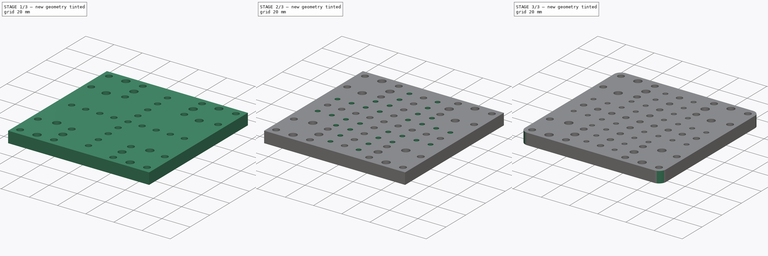
[diagram: build sequence overview — one tinted view per stage of 3, left to right]
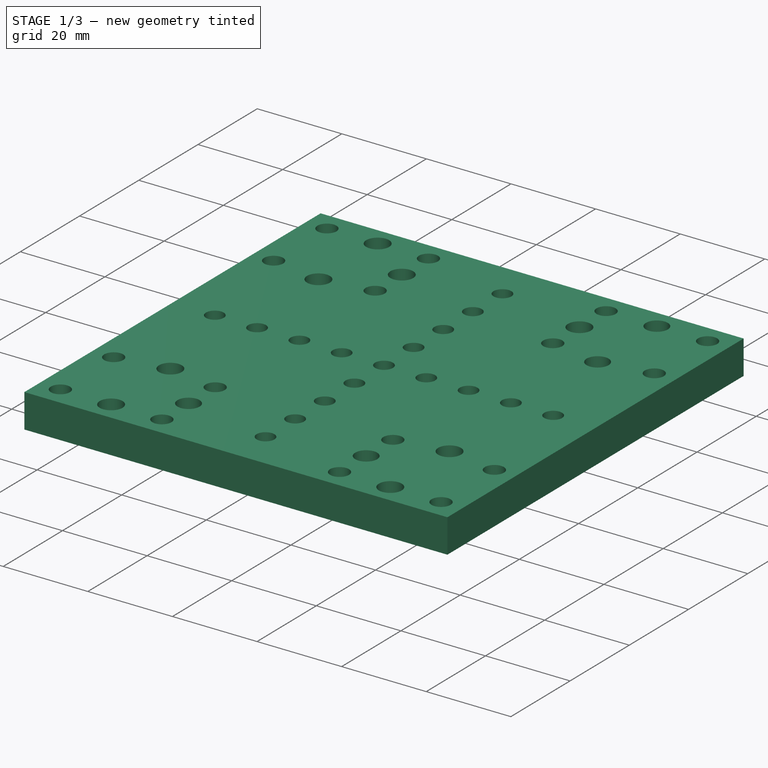
[diagram: stage 1 of 3 — iso view after this stage's code; geometry added in this stage tinted green]
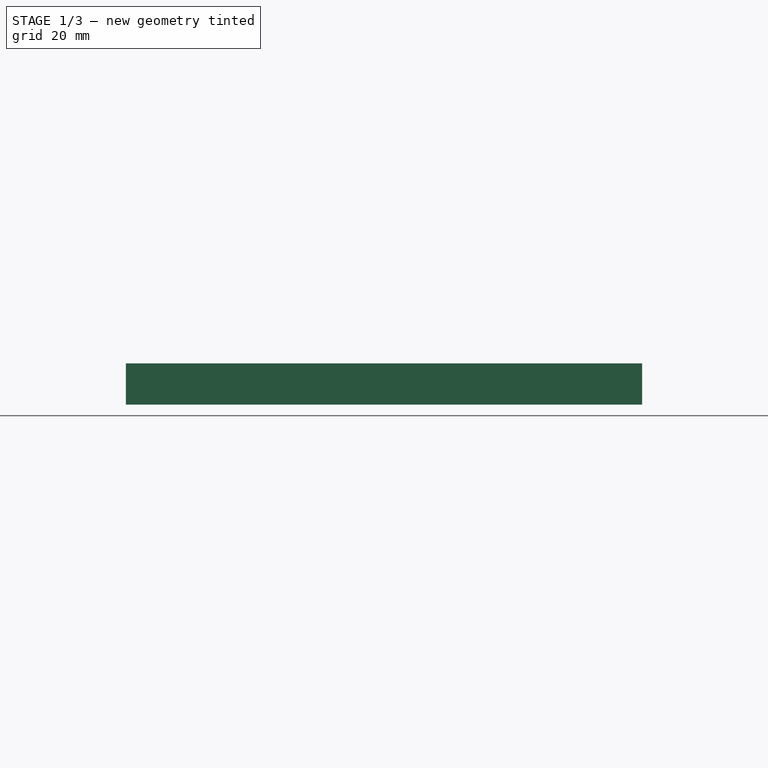
[diagram: stage 1 of 3 — front view after this stage's code; geometry added in this stage tinted green]
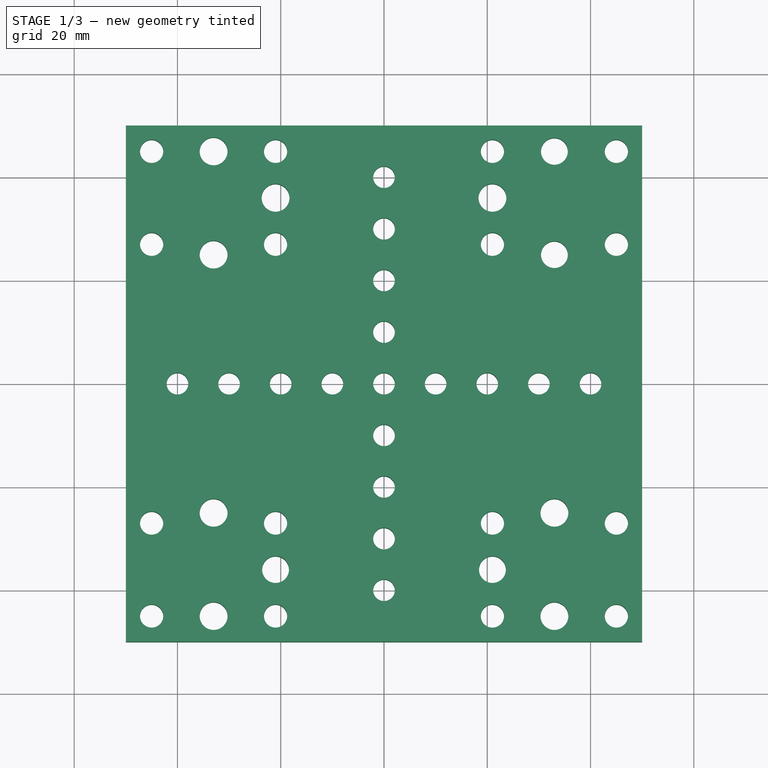
[diagram: stage 1 of 3 — top view after this stage's code; geometry added in this stage tinted green]
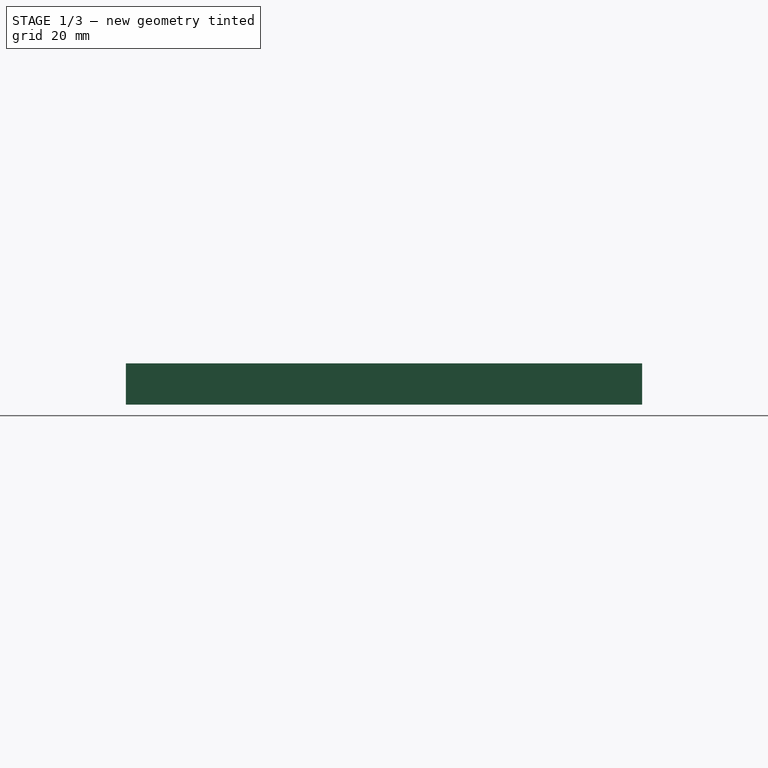
[diagram: stage 1 of 3 — right view after this stage's code; geometry added in this stage tinted green]
FCSTD DOCUMENT  (FreeCAD 0.16R6707 (Git))
Label: spindle base plate
License: All rights reserved
LicenseURL: http://en.wikipedia.org/wiki/All_rights_reserved
objects: Sketcher::SketchObject×4, PartDesign::Pocket×3, PartDesign::Pad×1, PartDesign::Fillet×1
note: 13 computed .brp shape members not serialized (recipe doc carries the construction recipe); baked Part::Feature solids carry a one-line shape summary decoded from their .brp

FEATURE [Sketcher::SketchObject] Sketch
  sketch-geometry (4):
    g0: LineSegment StartX=-50 StartY=50 StartZ=0 EndX=50 EndY=50 EndZ=0
    g1: LineSegment StartX=50 StartY=50 StartZ=0 EndX=50 EndY=-50 EndZ=0
    g2: LineSegment StartX=50 StartY=-50 StartZ=0 EndX=-50 EndY=-50 EndZ=0
    g3: LineSegment StartX=-50 StartY=-50 StartZ=0 EndX=-50 EndY=50 EndZ=0
  constraints (12):
    c: Coincident(g0,g1)
    c: Coincident(g1,g2)
    c: Coincident(g2,g3)
    c: Coincident(g3,g0)
    c: Horizontal(g0)
    c: Horizontal(g2)
    c: Vertical(g1)
    c: Vertical(g3)
    c: Symmetric(g0,g0,g-2)
    c: Symmetric(g0,g2,g-1)
    c: DistanceY(g3,g3) = 100
    c: DistanceX(g0,g0) = 100
FEATURE [PartDesign::Pad] Pad
  Length = 8
  Length2 = 100
  Sketch = -> Sketch
  Type = 0
FEATURE [Sketcher::SketchObject] Sketch001
  Placement = pos=(0,0,8) rot=(0,0,1;0rad)
  Support = -> Pad [Face6]
  sketch-geometry (69):
    g0: LineSegment [constr] StartX=-45 StartY=45 StartZ=0 EndX=45 EndY=45 EndZ=0
    g1: LineSegment [constr] StartX=45 StartY=45 StartZ=0 EndX=45 EndY=-45 EndZ=0
    g2: LineSegment [constr] StartX=45 StartY=-45 StartZ=0 EndX=-45 EndY=-45 EndZ=0
    g3: LineSegment [constr] StartX=-45 StartY=-45 StartZ=0 EndX=-45 EndY=45 EndZ=0
    g4: LineSegment [constr] StartX=-21 StartY=27 StartZ=0 EndX=21 EndY=27 EndZ=0
    g5: LineSegment [constr] StartX=21 StartY=27 StartZ=0 EndX=21 EndY=-27 EndZ=0
    g6: LineSegment [constr] StartX=21 StartY=-27 StartZ=0 EndX=-21 EndY=-27 EndZ=0
    g7: LineSegment [constr] StartX=-21 StartY=-27 StartZ=0 EndX=-21 EndY=27 EndZ=0
    g8: Circle CenterX=-21 CenterY=45 CenterZ=0 NormalX=0 NormalY=0 NormalZ=1 Radius=2.25
    g9: Circle CenterX=-45 CenterY=27 CenterZ=0 NormalX=0 NormalY=0 NormalZ=1 Radius=2.25
    g10: Circle CenterX=-45 CenterY=45 CenterZ=0 NormalX=0 NormalY=0 NormalZ=1 Radius=2.25
    g11: Circle CenterX=-21 CenterY=27 CenterZ=0 NormalX=0 NormalY=0 NormalZ=1 Radius=2.25
    g12: Circle CenterX=21 CenterY=27 CenterZ=0 NormalX=0 NormalY=0 NormalZ=1 Radius=2.25
    g13: Circle CenterX=21 CenterY=45 CenterZ=0 NormalX=0 NormalY=0 NormalZ=1 Radius=2.25
    g14: Circle CenterX=45 CenterY=27 CenterZ=0 NormalX=0 NormalY=0 NormalZ=1 Radius=2.25
    g15: Circle CenterX=45 CenterY=45 CenterZ=0 NormalX=0 NormalY=0 NormalZ=1 Radius=2.25
    g16: Circle CenterX=21 CenterY=-27 CenterZ=0 NormalX=0 NormalY=0 NormalZ=1 Radius=2.25
    g17: Circle CenterX=45 CenterY=-27 CenterZ=0 NormalX=0 NormalY=0 NormalZ=1 Radius=2.25
    g18: Circle CenterX=45 CenterY=-45 CenterZ=0 NormalX=0 NormalY=0 NormalZ=1 Radius=2.25
    g19: Circle CenterX=21 CenterY=-45 CenterZ=0 NormalX=0 NormalY=0 NormalZ=1 Radius=2.25
    g20: Circle CenterX=-21 CenterY=-27 CenterZ=0 NormalX=0 NormalY=0 NormalZ=1 Radius=2.25
    g21: Circle CenterX=-45 CenterY=-27 CenterZ=0 NormalX=0 NormalY=0 NormalZ=1 Radius=2.25
    g22: Circle CenterX=-21 CenterY=-45 CenterZ=0 NormalX=0 NormalY=0 NormalZ=1 Radius=2.25
    g23: Circle CenterX=-45 CenterY=-45 CenterZ=0 NormalX=0 NormalY=0 NormalZ=1 Radius=2.25
    g24: LineSegment [constr] StartX=-50 StartY=51 StartZ=0 EndX=-16 EndY=51 EndZ=0
    g25: LineSegment [constr] StartX=-16 StartY=51 StartZ=0 EndX=-16 EndY=21 EndZ=0
    g26: LineSegment [constr] StartX=-16 StartY=21 StartZ=0 EndX=-50 EndY=21 EndZ=0
    g27: LineSegment [constr] StartX=-50 StartY=21 StartZ=0 EndX=-50 EndY=51 EndZ=0
    g28: LineSegment [constr] StartX=-33 StartY=67.8937 StartZ=0 EndX=-33 EndY=-55.8987 EndZ=0
    g29: LineSegment [constr] StartX=33 StartY=60.0001 StartZ=0 EndX=33 EndY=-50 EndZ=0
    g30: Circle CenterX=-33 CenterY=45 CenterZ=0 NormalX=0 NormalY=0 NormalZ=1 Radius=2.7
    g31: Circle CenterX=-33 CenterY=25 CenterZ=0 NormalX=0 NormalY=0 NormalZ=1 Radius=2.7
    g32: Circle CenterX=33 CenterY=45 CenterZ=0 NormalX=0 NormalY=0 NormalZ=1 Radius=2.6
    g33: Circle CenterX=33 CenterY=25 CenterZ=0 NormalX=0 NormalY=0 NormalZ=1 Radius=2.6
    g34: LineSegment [constr] StartX=-43 StartY=55 StartZ=0 EndX=-23 EndY=55 EndZ=0
    g35: LineSegment [constr] StartX=-23 StartY=55 StartZ=0 EndX=-23 EndY=15 EndZ=0
    g36: LineSegment [constr] StartX=-23 StartY=15 StartZ=0 EndX=-43 EndY=15 EndZ=0
    g37: LineSegment [constr] StartX=-43 StartY=15 StartZ=0 EndX=-43 EndY=55 EndZ=0
    g38: Circle CenterX=-21 CenterY=-36 CenterZ=0 NormalX=0 NormalY=0 NormalZ=1 Radius=2.6
    g39: Circle CenterX=21 CenterY=-36 CenterZ=0 NormalX=0 NormalY=0 NormalZ=1 Radius=2.6
    g40: LineSegment [constr] StartX=-60 StartY=36 StartZ=0 EndX=59.9989 EndY=36 EndZ=0
    g41: Circle CenterX=-21 CenterY=36 CenterZ=0 NormalX=0 NormalY=0 NormalZ=1 Radius=2.7
    g42: Circle CenterX=21 CenterY=36 CenterZ=0 NormalX=0 NormalY=0 NormalZ=1 Radius=2.7
    g43: Circle CenterX=33 CenterY=-45 CenterZ=0 NormalX=0 NormalY=0 NormalZ=1 Radius=2.7
    g44: Circle CenterX=33 CenterY=-25 CenterZ=0 NormalX=0 NormalY=0 NormalZ=1 Radius=2.7
    g45: Circle CenterX=-33 CenterY=-25 CenterZ=0 NormalX=0 NormalY=0 NormalZ=1 Radius=2.7
    g46: Circle CenterX=-33 CenterY=-45 CenterZ=0 NormalX=0 NormalY=0 NormalZ=1 Radius=2.7
    g47: LineSegment [constr] StartX=-56.1432 StartY=-36 StartZ=0 EndX=70 EndY=-36 EndZ=0
    g48: LineSegment [constr] StartX=-21 StartY=-29 StartZ=0 EndX=21 EndY=-29 EndZ=0
    g49: LineSegment [constr] StartX=21 StartY=-29 StartZ=0 EndX=21 EndY=-43 EndZ=0
    g50: LineSegment [constr] StartX=21 StartY=-43 StartZ=0 EndX=-21 EndY=-43 EndZ=0
    g51: LineSegment [constr] StartX=-21 StartY=-43 StartZ=0 EndX=-21 EndY=-29 EndZ=0
    g52: Circle CenterX=0 CenterY=10 CenterZ=0 NormalX=0 NormalY=0 NormalZ=1 Radius=2.1
    g53: Circle CenterX=0 CenterY=20 CenterZ=0 NormalX=0 NormalY=0 NormalZ=1 Radius=2.1
    g54: Circle CenterX=0 CenterY=30 CenterZ=0 NormalX=0 NormalY=0 NormalZ=1 Radius=2.1
    g55: Circle CenterX=0 CenterY=40 CenterZ=0 NormalX=0 NormalY=0 NormalZ=1 Radius=2.1
    g56: Circle CenterX=10 CenterY=0 CenterZ=0 NormalX=0 NormalY=0 NormalZ=1 Radius=2.1
    g57: Circle CenterX=20 CenterY=0 CenterZ=0 NormalX=0 NormalY=0 NormalZ=1 Radius=2.1
    g58: Circle CenterX=30 CenterY=0 CenterZ=0 NormalX=0 NormalY=0 NormalZ=1 Radius=2.1
    g59: Circle CenterX=40 CenterY=0 CenterZ=0 NormalX=0 NormalY=0 NormalZ=1 Radius=2.1
    g60: Circle CenterX=-10 CenterY=0 CenterZ=0 NormalX=0 NormalY=0 NormalZ=1 Radius=2.1
    g61: Circle CenterX=-20 CenterY=0 CenterZ=0 NormalX=0 NormalY=0 NormalZ=1 Radius=2.1
    g62: Circle CenterX=-30 CenterY=0 CenterZ=0 NormalX=0 NormalY=0 NormalZ=1 Radius=2.1
    g63: Circle CenterX=-40 CenterY=0 CenterZ=0 NormalX=0 NormalY=0 NormalZ=1 Radius=2.1
    g64: Circle CenterX=0 CenterY=-10 CenterZ=0 NormalX=0 NormalY=0 NormalZ=1 Radius=2.1
    g65: Circle CenterX=0 CenterY=-20 CenterZ=0 NormalX=0 NormalY=0 NormalZ=1 Radius=2.1
    g66: Circle CenterX=0 CenterY=-30 CenterZ=0 NormalX=0 NormalY=0 NormalZ=1 Radius=2.1
    g67: Circle CenterX=0 CenterY=-40 CenterZ=0 NormalX=0 NormalY=0 NormalZ=1 Radius=2.1
    g68: Circle CenterX=0 CenterY=0 CenterZ=0 NormalX=0 NormalY=0 NormalZ=1 Radius=2.1
  constraints (189):
    c: Coincident(g0,g1)
    c: Coincident(g1,g2)
    c: Coincident(g2,g3)
    c: Coincident(g3,g0)
    c: Horizontal(g2)
    c: Vertical(g1)
    c: Vertical(g3)
    c: Symmetric(g0,g0,g-2)
    c: Symmetric(g0,g2,g-1)
    c: DistanceX(g0,g0) = 90
    c: DistanceY(g3,g3) = 90
    c: Coincident(g4,g5)
    c: Coincident(g5,g6)
    c: Coincident(g6,g7)
    c: Coincident(g7,g4)
    c: Horizontal(g4)
    c: Horizontal(g6)
    c: Vertical(g5)
    c: Vertical(g7)
    c: Symmetric(g4,g4,g-2)
    c: Symmetric(g4,g6,g-1)
    c: DistanceY(g5,g5) = 54
    c: DistanceX(g4,g4) = 42
    c: PointOnObject(g8,g0)
    c: PointOnObject(g9,g3)
    c: Coincident(g10,g0)
    c: Coincident(g11,g4)
    c: Coincident(g12,g4)
    c: PointOnObject(g13,g0)
    c: PointOnObject(g14,g1)
    c: Coincident(g15,g0)
    c: Coincident(g16,g5)
    c: PointOnObject(g17,g1)
    c: Coincident(g18,g1)
    c: PointOnObject(g19,g2)
    c: Coincident(g20,g6)
    c: PointOnObject(g21,g3)
    c: PointOnObject(g22,g2)
    c: Coincident(g23,g2)
    c: Equal(g10,g8)
    c: Equal(g8,g11)
    c: Equal(g11,g9)
    c: Equal(g9,g21)
    c: Equal(g21,g23)
    c: Equal(g23,g20)
    c: Equal(g20,g22)
    c: Equal(g22,g19)
    c: Equal(g19,g16)
    c: Equal(g16,g17)
    c: Equal(g17,g18)
    c: Equal(g18,g14)
    c: Equal(g14,g12)
    c: Equal(g12,g13)
    c: Equal(g13,g15)
    c: Radius(g10) = 2.25
    c: PointOnObject(g9,g4)
    c: PointOnObject(g8,g7)
    c: PointOnObject(g13,g5)
    c: PointOnObject(g14,g4)
    c: PointOnObject(g21,g6)
    c: PointOnObject(g22,g7)
    c: PointOnObject(g19,g5)
    c: PointOnObject(g17,g6)
    c: Coincident(g24,g25)
    c: Coincident(g25,g26)
    c: Coincident(g26,g27)
    c: Coincident(g27,g24)
    c: Horizontal(g24)
    c: Horizontal(g26)
    c: Vertical(g25)
    c: Vertical(g27)
    c: DistanceX(g24,g0) = 5
    c: DistanceY(g0,g24) = 6
    c: DistanceY(g27,g27) = 30
    c: DistanceX(g24,g24) = 34
    c: Vertical(g28)
    c: Symmetric(g0,g8,g28)
    c: Vertical(g29)
    c: Symmetric(g13,g0,g29)
    c: PointOnObject(g30,g0)
    c: PointOnObject(g30,g28)
    c: PointOnObject(g31,g28)
    c: DistanceY(g31,g30) = 20
    c: PointOnObject(g32,g0)
    c: PointOnObject(g32,g29)
    c: PointOnObject(g33,g29)
    c: DistanceY(g33,g32) = 20
    c: Equal(g30,g31)
    c: Equal(g32,g33)
    c: Radius(g30) = 2.7
    c: Coincident(g34,g35)
    c: Coincident(g35,g36)
    c: Coincident(g36,g37)
    c: Coincident(g37,g34)
    c: Horizontal(g34)
    c: Horizontal(g36)
    c: Vertical(g35)
    c: Vertical(g37)
    c: Symmetric(g34,g34,g28)
    c: DistanceY(g30,g34) = 10
    c: DistanceX(g34,g34) = 20
    c: DistanceY(g37,g37) = 40
    c: Horizontal(g40)
    c: Symmetric(g0,g14,g40)
    c: PointOnObject(g41,g40)
    c: PointOnObject(g42,g40)
    c: Symmetric(g41,g42,g-2)
    c: Equal(g41,g42)
    c: Radius(g41) = 2.7
    c: DistanceX(g41,g42) = 42
    c: PointOnObject(g43,g2)
    c: PointOnObject(g44,g29)
    c: PointOnObject(g45,g28)
    c: PointOnObject(g46,g2)
    c: PointOnObject(g46,g28)
    c: PointOnObject(g43,g29)
    c: Equal(g45,g46)
    c: Equal(g46,g44)
    c: Equal(g44,g43)
    c: Radius(g45) = 2.7
    c: DistanceY(g46,g45) = 20
    c: DistanceY(g43,g44) = 20
    c: Radius(g38) = 2.6
    c: Equal(g38,g39)
    c: Symmetric(g39,g38,g-2)
    c: DistanceX(g38,g39) = 42
    c: Horizontal(g47)
    c: Symmetric(g17,g1,g47)
    c: PointOnObject(g39,g47)
    c: Coincident(g48,g49)
    c: Coincident(g49,g50)
    c: Coincident(g50,g51)
    c: Coincident(g51,g48)
    c: Horizontal(g48)
    c: Horizontal(g50)
    c: Vertical(g49)
    c: Vertical(g51)
    c: Symmetric(g48,g49,g47)
    c: DistanceY(g49,g49) = 14
    c: Symmetric(g48,g48,g-2)
    c: DistanceX(g48,g48) = 42
    c: PointOnObject(g52,g-2)
    c: PointOnObject(g53,g-2)
    c: PointOnObject(g54,g-2)
    c: PointOnObject(g56,g-1)
    c: PointOnObject(g57,g-1)
    c: PointOnObject(g58,g-1)
    c: PointOnObject(g59,g-1)
    c: PointOnObject(g60,g-1)
    c: PointOnObject(g61,g-1)
    c: PointOnObject(g62,g-1)
    c: PointOnObject(g63,g-1)
    c: PointOnObject(g64,g-2)
    c: PointOnObject(g65,g-2)
    c: PointOnObject(g67,g-2)
    c: Equal(g55,g54)
    c: Equal(g54,g53)
    c: Equal(g53,g52)
    c: Equal(g52,g64)
    c: Equal(g64,g65)
    c: Equal(g65,g66)
    c: Equal(g66,g67)
    c: Equal(g67,g60)
    c: Equal(g60,g61)
    c: Equal(g61,g62)
    c: Equal(g62,g63)
    c: Equal(g63,g56)
    c: Equal(g56,g57)
    c: Equal(g57,g58)
    c: Equal(g58,g59)
    c: Radius(g53) = 2.1
    c: Symmetric(g52,g64,g-1)
    c: Symmetric(g53,g65,g-1)
    c: Symmetric(g54,g66,g-1)
    c: Symmetric(g55,g67,g-1)
    c: DistanceY(g-1,g52) = 10
    c: DistanceY(g-1,g53) = 20
    c: DistanceY(g-1,g54) = 30
    c: DistanceY(g-1,g55) = 40
    c: Symmetric(g60,g56,g-2)
    c: Symmetric(g61,g57,g-2)
    c: Symmetric(g58,g62,g-2)
    c: Symmetric(g63,g59,g-2)
    c: DistanceX(g60,g-1) = 10
    c: DistanceX(g61,g-1) = 20
    c: DistanceX(g62,g-1) = 30
    c: DistanceX(g63,g-1) = 40
    c: Coincident(g68,g-1)
    c: Radius(g68) = 2.1
FEATURE [PartDesign::Pocket] Pocket
  Length = 5
  Sketch = -> Sketch001
  Type = 1
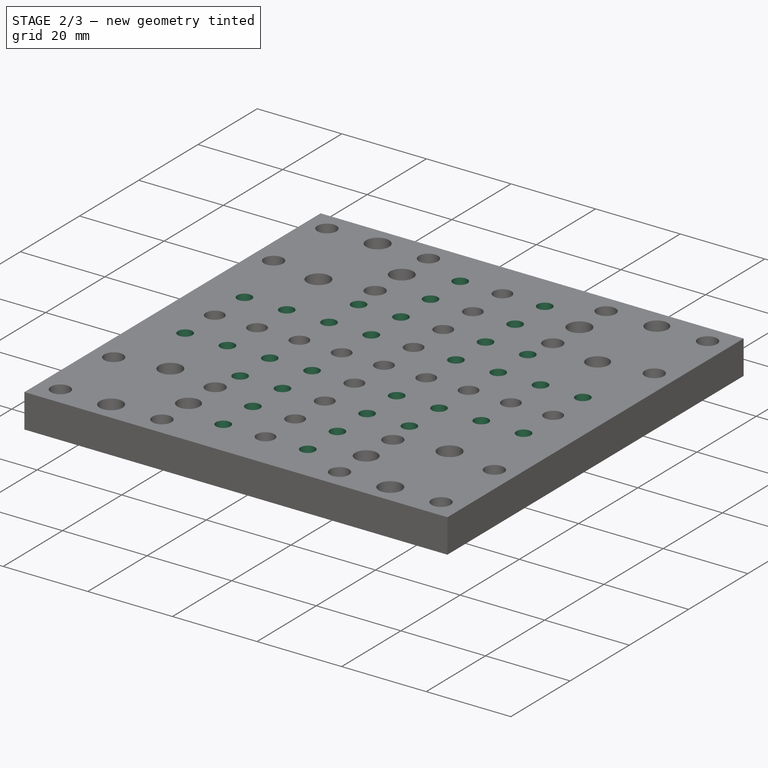
[diagram: stage 2 of 3 — iso view after this stage's code; geometry added in this stage tinted green]
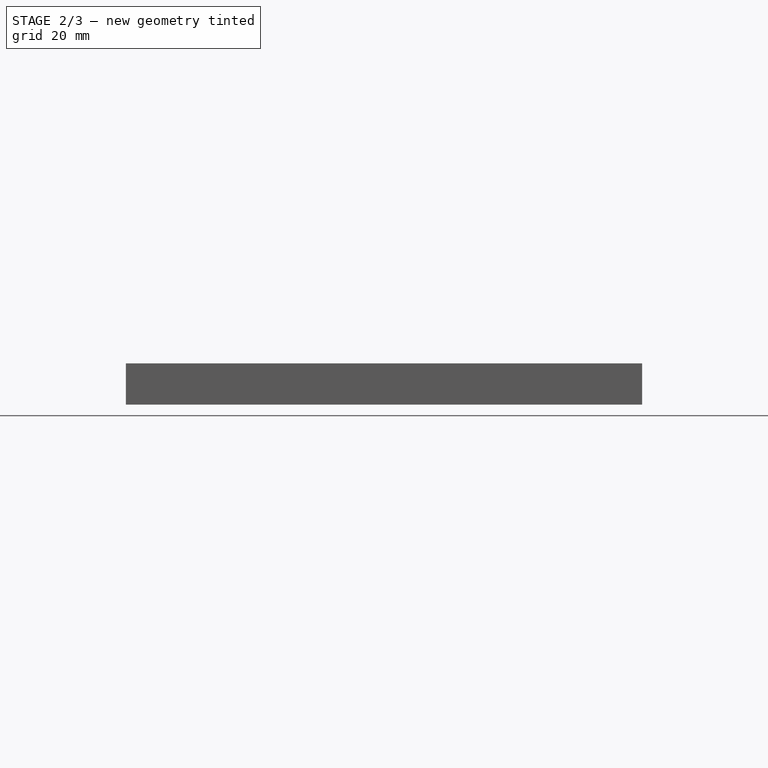
[diagram: stage 2 of 3 — front view after this stage's code; geometry added in this stage tinted green]
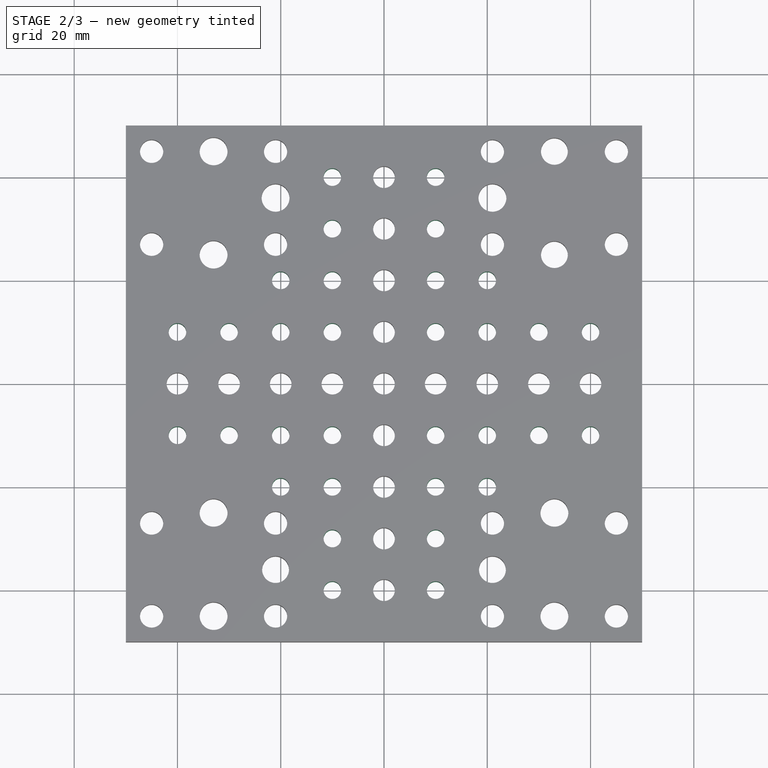
[diagram: stage 2 of 3 — top view after this stage's code; geometry added in this stage tinted green]
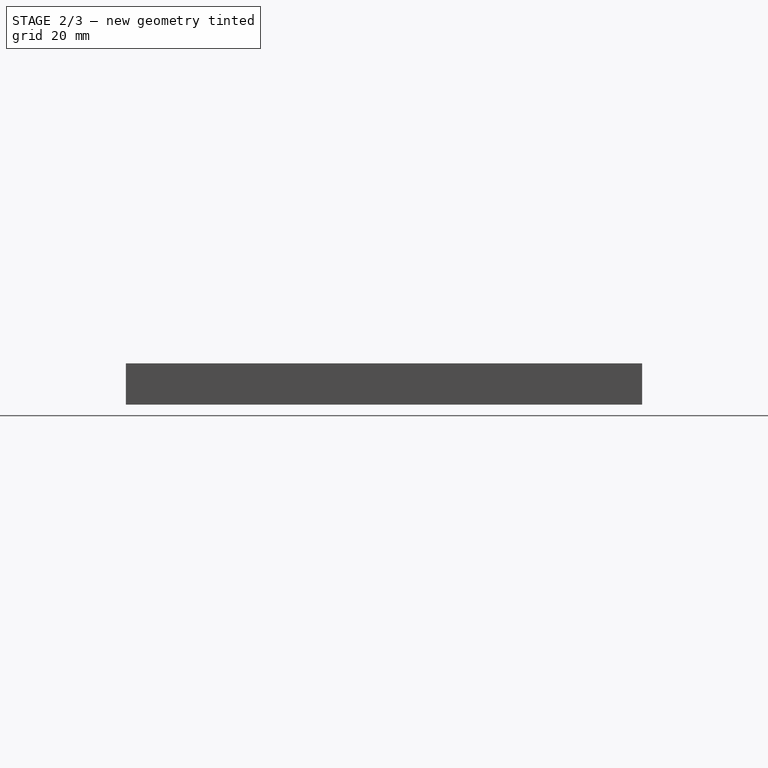
[diagram: stage 2 of 3 — right view after this stage's code; geometry added in this stage tinted green]
FEATURE [Sketcher::SketchObject] Sketch002
  Placement = pos=(0,0,8) rot=(0,0,1;0rad)
  Support = -> Pocket [Face5]
  sketch-geometry (32):
    g0: Circle CenterX=-10 CenterY=10 CenterZ=0 NormalX=0 NormalY=0 NormalZ=1 Radius=1.7
    g1: Circle CenterX=-20 CenterY=10 CenterZ=0 NormalX=0 NormalY=0 NormalZ=1 Radius=1.7
    g2: Circle CenterX=-30 CenterY=10 CenterZ=0 NormalX=0 NormalY=0 NormalZ=1 Radius=1.7
    g3: Circle CenterX=-40 CenterY=10 CenterZ=0 NormalX=0 NormalY=0 NormalZ=1 Radius=1.7
    g4: Circle CenterX=-10 CenterY=-10 CenterZ=0 NormalX=0 NormalY=0 NormalZ=1 Radius=1.7
    g5: Circle CenterX=-20 CenterY=-10 CenterZ=0 NormalX=0 NormalY=0 NormalZ=1 Radius=1.7
    g6: Circle CenterX=-30 CenterY=-10 CenterZ=0 NormalX=0 NormalY=0 NormalZ=1 Radius=1.7
    g7: Circle CenterX=-40 CenterY=-10 CenterZ=0 NormalX=0 NormalY=0 NormalZ=1 Radius=1.7
    g8: Circle CenterX=10 CenterY=10 CenterZ=0 NormalX=0 NormalY=0 NormalZ=1 Radius=1.7
    g9: Circle CenterX=10 CenterY=-10 CenterZ=0 NormalX=0 NormalY=0 NormalZ=1 Radius=1.7
    g10: Circle CenterX=20 CenterY=-10 CenterZ=0 NormalX=0 NormalY=0 NormalZ=1 Radius=1.7
    g11: Circle CenterX=20 CenterY=10 CenterZ=0 NormalX=0 NormalY=0 NormalZ=1 Radius=1.7
    g12: Circle CenterX=30 CenterY=10 CenterZ=0 NormalX=0 NormalY=0 NormalZ=1 Radius=1.7
    g13: Circle CenterX=40 CenterY=10 CenterZ=0 NormalX=0 NormalY=0 NormalZ=1 Radius=1.7
    g14: Circle CenterX=30 CenterY=-10 CenterZ=0 NormalX=0 NormalY=0 NormalZ=1 Radius=1.7
    g15: Circle CenterX=40 CenterY=-10 CenterZ=0 NormalX=0 NormalY=0 NormalZ=1 Radius=1.7
    g16: Circle CenterX=-10 CenterY=20 CenterZ=0 NormalX=0 NormalY=0 NormalZ=1 Radius=1.7
    g17: Circle CenterX=-20 CenterY=20 CenterZ=0 NormalX=0 NormalY=0 NormalZ=1 Radius=1.7
    g18: Circle CenterX=10 CenterY=20 CenterZ=0 NormalX=0 NormalY=0 NormalZ=1 Radius=1.7
    g19: Circle CenterX=20 CenterY=20 CenterZ=0 NormalX=0 NormalY=0 NormalZ=1 Radius=1.7
    g20: Circle CenterX=20 CenterY=-20 CenterZ=0 NormalX=0 NormalY=0 NormalZ=1 Radius=1.7
    g21: Circle CenterX=10 CenterY=-20 CenterZ=0 NormalX=0 NormalY=0 NormalZ=1 Radius=1.7
    g22: Circle CenterX=-10 CenterY=-20 CenterZ=0 NormalX=0 NormalY=0 NormalZ=1 Radius=1.7
    g23: Circle CenterX=-20 CenterY=-20 CenterZ=0 NormalX=0 NormalY=0 NormalZ=1 Radius=1.7
    g24: Circle CenterX=-10 CenterY=30 CenterZ=0 NormalX=0 NormalY=0 NormalZ=1 Radius=1.7
    g25: Circle CenterX=-10 CenterY=40 CenterZ=0 NormalX=0 NormalY=0 NormalZ=1 Radius=1.7
    g26: Circle CenterX=10 CenterY=40 CenterZ=0 NormalX=0 NormalY=0 NormalZ=1 Radius=1.7
    g27: Circle CenterX=10 CenterY=30 CenterZ=0 NormalX=0 NormalY=0 NormalZ=1 Radius=1.7
    g28: Circle CenterX=10 CenterY=-30 CenterZ=0 NormalX=0 NormalY=0 NormalZ=1 Radius=1.7
    g29: Circle CenterX=-10 CenterY=-30 CenterZ=0 NormalX=0 NormalY=0 NormalZ=1 Radius=1.7
    g30: Circle CenterX=-10 CenterY=-40 CenterZ=0 NormalX=0 NormalY=0 NormalZ=1 Radius=1.7
    g31: Circle CenterX=10 CenterY=-40 CenterZ=0 NormalX=0 NormalY=0 NormalZ=1 Radius=1.7
  constraints (27):
    c: Equal(g3,g2)
    c: Equal(g2,g1)
    c: Equal(g1,g0)
    c: Equal(g0,g4)
    c: Equal(g4,g5)
    c: Equal(g5,g6)
    c: Equal(g6,g7)
    c: Equal(g8,g11)
    c: Equal(g11,g12)
    c: Equal(g12,g13)
    c: Equal(g15,g14)
    c: Equal(g14,g10)
    c: Equal(g10,g9)
    c: Radius(g1) = 1.7
    c: Equal(g23,g22)
    c: Equal(g22,g29)
    c: Equal(g29,g30)
    c: Equal(g30,g31)
    c: Equal(g31,g28)
    c: Equal(g28,g21)
    c: Equal(g20,g18)
    c: Equal(g19,g27)
    c: Equal(g27,g24)
    c: Equal(g24,g16)
    c: Equal(g16,g17)
    c: Equal(g25,g26)
    c: Radius(g25) = 1.7
FEATURE [PartDesign::Pocket] Pocket001
  Length = 5
  Sketch = -> Sketch002
  Type = 1
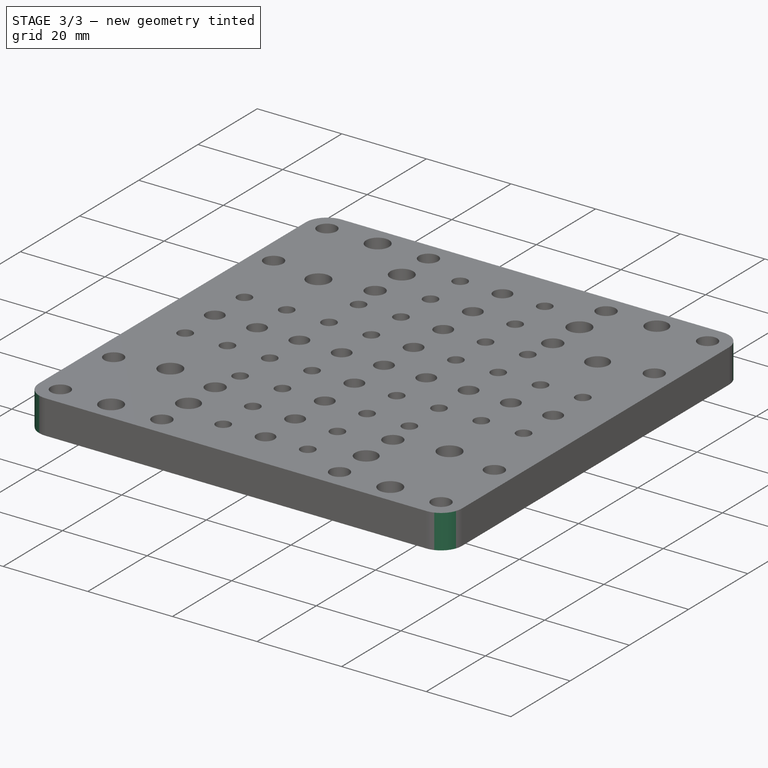
[diagram: stage 3 of 3 — iso view after this stage's code; geometry added in this stage tinted green]
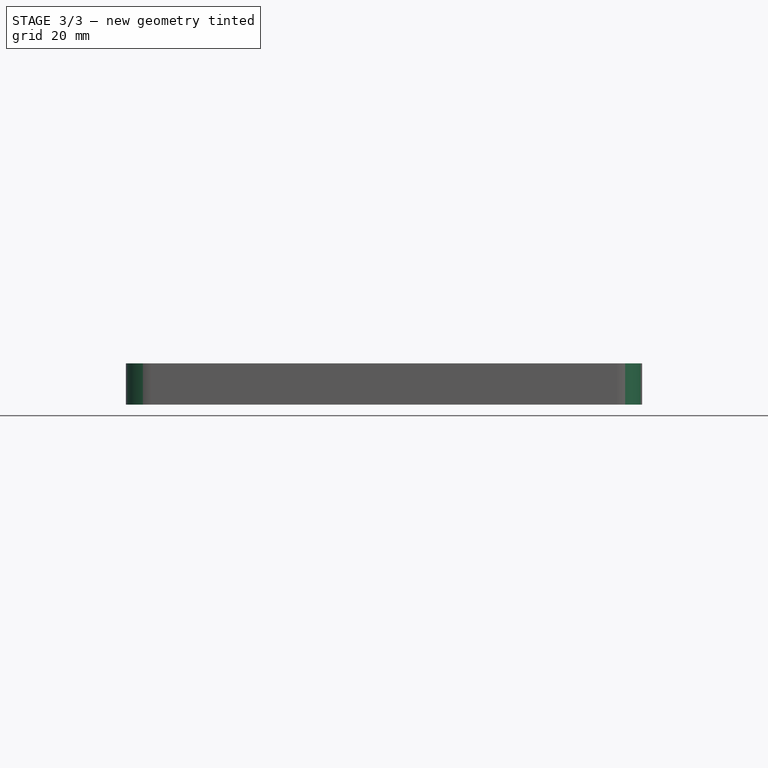
[diagram: stage 3 of 3 — front view after this stage's code; geometry added in this stage tinted green]
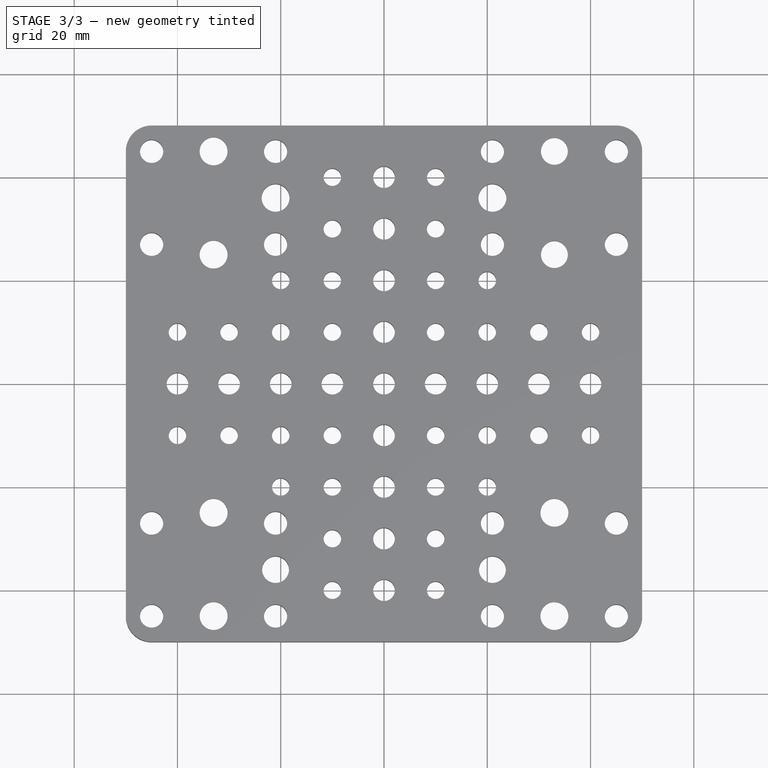
[diagram: stage 3 of 3 — top view after this stage's code; geometry added in this stage tinted green]
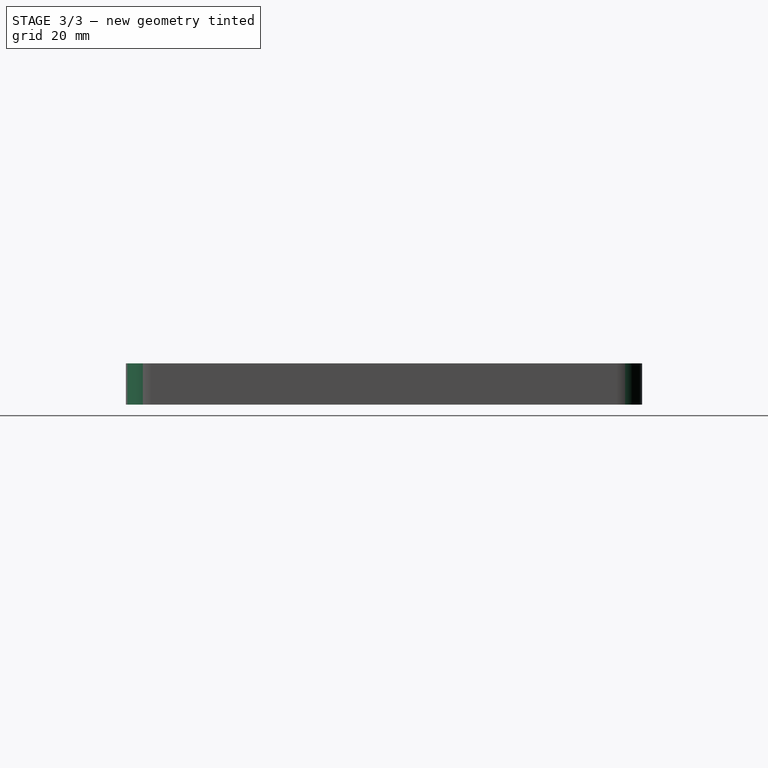
[diagram: stage 3 of 3 — right view after this stage's code; geometry added in this stage tinted green]
FEATURE [Sketcher::SketchObject] Sketch003
  Placement = pos=(0,0,0) rot=(1,0,0;3.14159rad)
  Support = -> Pocket001 [Face4]
  sketch-geometry (8):
    g0: Circle CenterX=-33 CenterY=45 CenterZ=0 NormalX=0 NormalY=0 NormalZ=1 Radius=4.6
    g1: Circle CenterX=33 CenterY=-25 CenterZ=0 NormalX=0 NormalY=0 NormalZ=1 Radius=4.6
    g2: Circle CenterX=33 CenterY=25 CenterZ=0 NormalX=0 NormalY=0 NormalZ=1 Radius=4.6
    g3: Circle CenterX=33 CenterY=45 CenterZ=0 NormalX=0 NormalY=0 NormalZ=1 Radius=4.6
    g4: Circle CenterX=-33 CenterY=25 CenterZ=0 NormalX=0 NormalY=0 NormalZ=1 Radius=4.6
    g5: Circle CenterX=33.0279 CenterY=-45.1048 CenterZ=0 NormalX=0 NormalY=0 NormalZ=1 Radius=4.6
    g6: Circle CenterX=-32.9375 CenterY=-44.9628 CenterZ=0 NormalX=0 NormalY=0 NormalZ=1 Radius=4.6
    g7: Circle CenterX=-32.9375 CenterY=-25.1223 CenterZ=0 NormalX=0 NormalY=0 NormalZ=1 Radius=4.6
  constraints (8):
    c: Equal(g0,g1)
    c: Equal(g1,g2)
    c: Equal(g2,g3)
    c: Equal(g3,g4)
    c: Equal(g4,g5)
    c: Equal(g5,g7)
    c: Equal(g7,g6)
    c: Radius(g0) = 4.6
FEATURE [PartDesign::Pocket] Pocket002
  Length = 5.3
  Sketch = -> Sketch003
  Type = 0
FEATURE [PartDesign::Fillet] Fillet
  Base = -> Pocket002 [Edge5,Edge8,Edge1,Edge2]
  Radius = 5
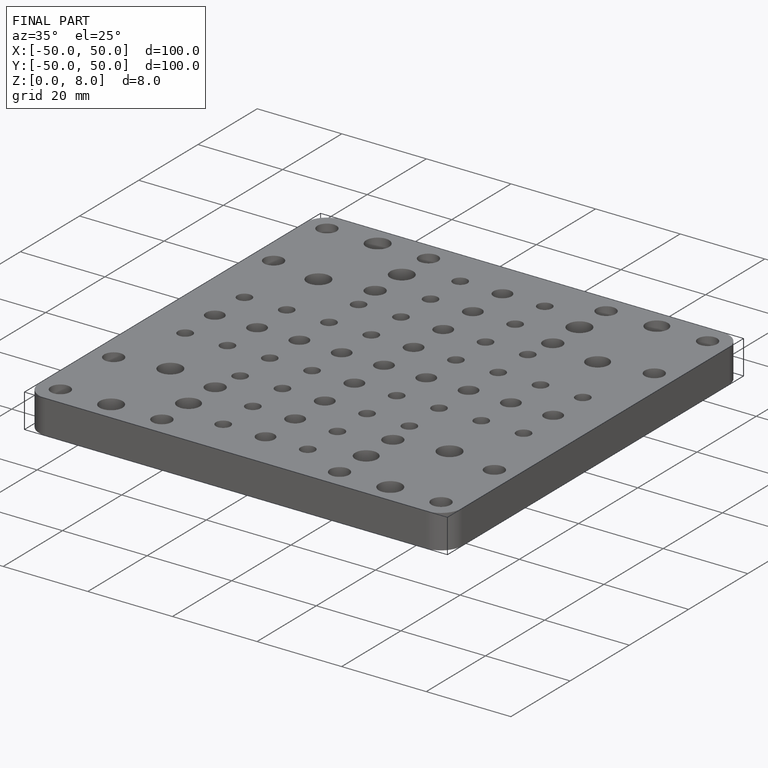
[diagram: finished part — iso view with bounding-box wireframe]
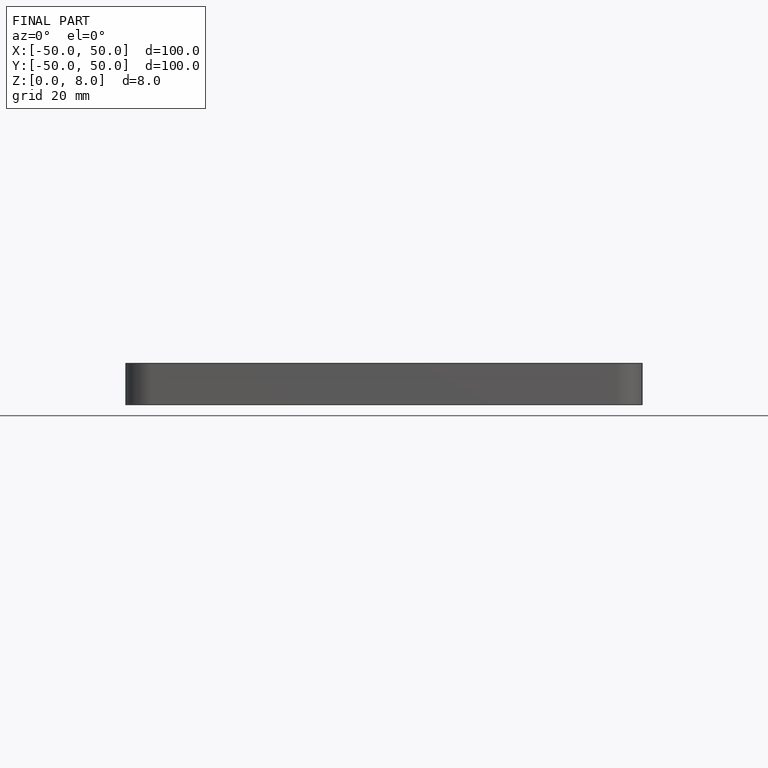
[diagram: finished part — front view with bounding-box wireframe]
